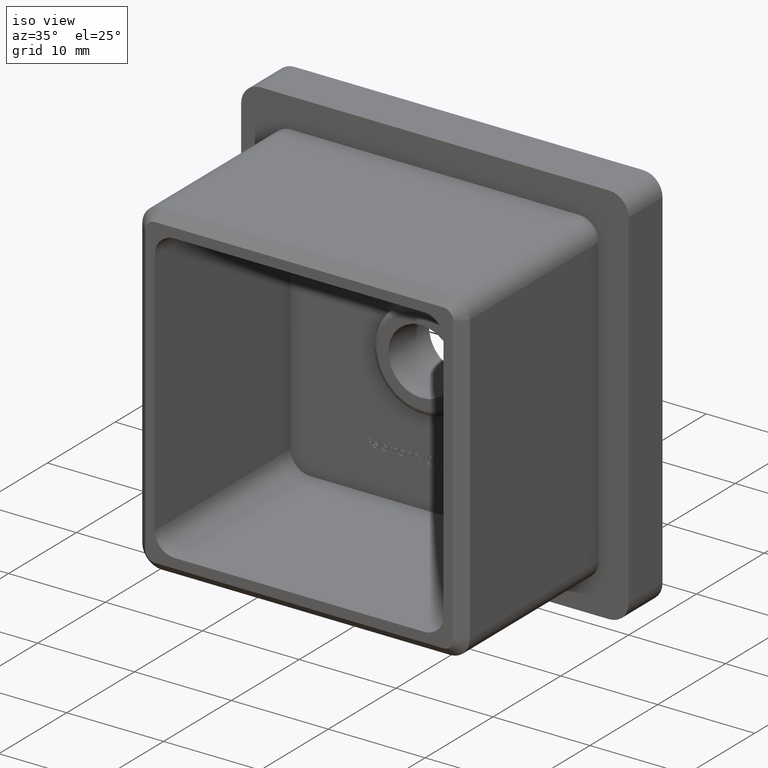
[diagram: clean part render]
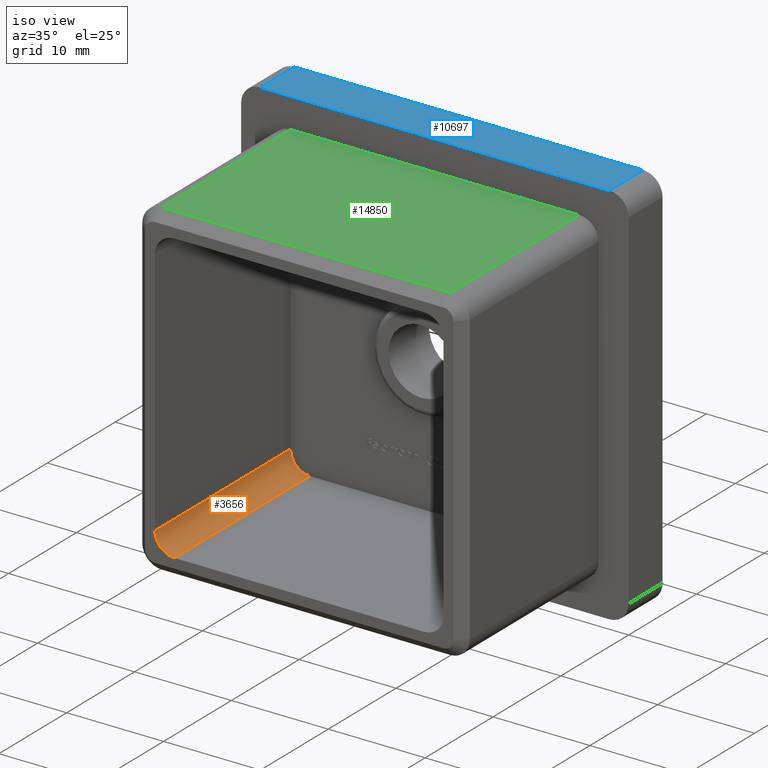
[diagram: same view with three faces highlighted in distinct colors, each labeled with its STEP entity id]
A machine part, iso view with three faces highlighted in distinct colors.
Their STEP definitions:

[orange] entity #3656 — the highlighted cylindrical surface (edge-blend (fillet) strip) has radius 2 mm, axis along (0, -1, 0).
#1190 = EDGE_CURVE ( 'NONE', #16471, #14129, #3633, .T. ) ;
#3277 = EDGE_CURVE ( 'NONE', #14129, #16538, #7452, .T. ) ;
#3633 = CIRCLE ( 'NONE', #6198, 2.000000000000000000 ) ;
#3656 = ADVANCED_FACE ( 'NONE', ( #8337 ), #10120, .F. ) ;
#4067 = EDGE_CURVE ( 'NONE', #10233, #16471, #5031, .T. ) ;
#4364 = ORIENTED_EDGE ( 'NONE', *, *, #1190, .F. ) ;
#4897 = AXIS2_PLACEMENT_3D ( 'NONE', #5185, #15134, #6672 ) ;
#5031 = LINE ( 'NONE', #8100, #11888 ) ;
#5185 = CARTESIAN_POINT ( 'NONE',  ( -12.89999999999999900, 0.0000000000000000000, -12.89999999999999700 ) ) ;
#5838 = CARTESIAN_POINT ( 'NONE',  ( -12.89999999999999900, -20.00000000000000000, -14.89999999999999700 ) ) ;
#5889 = ORIENTED_EDGE ( 'NONE', *, *, #3277, .F. ) ;
#5998 = CIRCLE ( 'NONE', #4897, 2.000000000000000000 ) ;
#6198 = AXIS2_PLACEMENT_3D ( 'NONE', #13736, #17773, #8040 ) ;
#6466 = DIRECTION ( 'NONE',  ( 0.0000000000000000000, -1.000000000000000000, 0.0000000000000000000 ) ) ;
#6672 = DIRECTION ( 'NONE',  ( 0.0000000000000000000, 0.0000000000000000000, 1.000000000000000000 ) ) ;
#7452 = LINE ( 'NONE', #16198, #18253 ) ;
#8040 = DIRECTION ( 'NONE',  ( 0.0000000000000000000, 0.0000000000000000000, -1.000000000000000000 ) ) ;
#8100 = CARTESIAN_POINT ( 'NONE',  ( -12.89999999999999900, -20.00000000000000000, -14.89999999999999700 ) ) ;
#8337 = FACE_OUTER_BOUND ( 'NONE', #9859, .T. ) ;
#9255 = CARTESIAN_POINT ( 'NONE',  ( -12.89999999999999900, -20.00000000000000000, -12.89999999999999700 ) ) ;
#9612 = ORIENTED_EDGE ( 'NONE', *, *, #15752, .F. ) ;
#9859 = EDGE_LOOP ( 'NONE', ( #4364, #16252, #9612, #5889 ) ) ;
#10120 = CYLINDRICAL_SURFACE ( 'NONE', #17383, 2.000000000000000000 ) ;
#10233 = VERTEX_POINT ( 'NONE', #14122 ) ;
#10749 = DIRECTION ( 'NONE',  ( -0.0000000000000000000, -1.000000000000000000, 0.0000000000000000000 ) ) ;
#11538 = CARTESIAN_POINT ( 'NONE',  ( -14.89999999999999900, 0.0000000000000000000, -12.89999999999999700 ) ) ;
#11888 = VECTOR ( 'NONE', #10749, 1000.000000000000000 ) ;
#13398 = DIRECTION ( 'NONE',  ( 0.0000000000000000000, 0.0000000000000000000, -1.000000000000000000 ) ) ;
#13671 = DIRECTION ( 'NONE',  ( 0.0000000000000000000, 1.000000000000000000, -0.0000000000000000000 ) ) ;
#13736 = CARTESIAN_POINT ( 'NONE',  ( -12.89999999999999900, -20.00000000000000000, -12.89999999999999700 ) ) ;
#14122 = CARTESIAN_POINT ( 'NONE',  ( -12.89999999999999900, 0.0000000000000000000, -14.89999999999999700 ) ) ;
#14129 = VERTEX_POINT ( 'NONE', #14653 ) ;
#14653 = CARTESIAN_POINT ( 'NONE',  ( -14.89999999999999900, -20.00000000000000000, -12.89999999999999700 ) ) ;
#15134 = DIRECTION ( 'NONE',  ( -0.0000000000000000000, -1.000000000000000000, -0.0000000000000000000 ) ) ;
#15752 = EDGE_CURVE ( 'NONE', #16538, #10233, #5998, .T. ) ;
#16198 = CARTESIAN_POINT ( 'NONE',  ( -14.89999999999999900, 0.0000000000000000000, -12.89999999999999700 ) ) ;
#16252 = ORIENTED_EDGE ( 'NONE', *, *, #4067, .F. ) ;
#16471 = VERTEX_POINT ( 'NONE', #5838 ) ;
#16538 = VERTEX_POINT ( 'NONE', #11538 ) ;
#17383 = AXIS2_PLACEMENT_3D ( 'NONE', #9255, #6466, #13398 ) ;
#17773 = DIRECTION ( 'NONE',  ( -0.0000000000000000000, 1.000000000000000000, -0.0000000000000000000 ) ) ;
#18253 = VECTOR ( 'NONE', #13671, 1000.000000000000000 ) ;

[blue] entity #10697 — the highlighted planar face has unit normal (0, 0, -1).
#403 = EDGE_LOOP ( 'NONE', ( #16782, #14934, #9663, #12147 ) ) ;
#438 = DIRECTION ( 'NONE',  ( 1.000000000000000000, 0.0000000000000000000, 0.0000000000000000000 ) ) ;
#663 = CARTESIAN_POINT ( 'NONE',  ( 18.00000000000000000, 5.000000000000000000, 19.99999999999999600 ) ) ;
#948 = PLANE ( 'NONE',  #7018 ) ;
#2145 = CARTESIAN_POINT ( 'NONE',  ( -20.00000000000000000, 5.000000000000000000, 19.99999999999999600 ) ) ;
#2248 = CARTESIAN_POINT ( 'NONE',  ( 18.00000000000000000, 5.000000000000000000, 19.99999999999999600 ) ) ;
#2267 = DIRECTION ( 'NONE',  ( -1.000000000000000000, 0.0000000000000000000, -0.0000000000000000000 ) ) ;
#2606 = CARTESIAN_POINT ( 'NONE',  ( -18.00000000000000000, 5.000000000000000000, 19.99999999999999600 ) ) ;
#4064 = CARTESIAN_POINT ( 'NONE',  ( -18.00000000000000000, 5.000000000000000000, 19.99999999999999600 ) ) ;
#4515 = VERTEX_POINT ( 'NONE', #4615 ) ;
#4615 = CARTESIAN_POINT ( 'NONE',  ( -18.00000000000000000, 0.0000000000000000000, 19.99999999999999600 ) ) ;
#4793 = VERTEX_POINT ( 'NONE', #4064 ) ;
#5476 = VECTOR ( 'NONE', #6467, 1000.000000000000000 ) ;
#5722 = VERTEX_POINT ( 'NONE', #10026 ) ;
#6467 = DIRECTION ( 'NONE',  ( 1.000000000000000000, 0.0000000000000000000, 0.0000000000000000000 ) ) ;
#7018 = AXIS2_PLACEMENT_3D ( 'NONE', #2145, #12015, #2267 ) ;
#8371 = LINE ( 'NONE', #2606, #10137 ) ;
#8578 = LINE ( 'NONE', #663, #9033 ) ;
#9033 = VECTOR ( 'NONE', #13196, 1000.000000000000000 ) ;
#9240 = LINE ( 'NONE', #12039, #5476 ) ;
#9663 = ORIENTED_EDGE ( 'NONE', *, *, #12436, .F. ) ;
#10026 = CARTESIAN_POINT ( 'NONE',  ( 18.00000000000000000, 0.0000000000000000000, 19.99999999999999600 ) ) ;
#10137 = VECTOR ( 'NONE', #14262, 1000.000000000000000 ) ;
#10697 = ADVANCED_FACE ( 'NONE', ( #13111 ), #948, .F. ) ;
#11286 = EDGE_CURVE ( 'NONE', #4793, #4515, #8371, .T. ) ;
#12013 = EDGE_CURVE ( 'NONE', #5722, #14329, #8578, .T. ) ;
#12015 = DIRECTION ( 'NONE',  ( 0.0000000000000000000, 0.0000000000000000000, -1.000000000000000000 ) ) ;
#12039 = CARTESIAN_POINT ( 'NONE',  ( -20.00000000000000000, 5.000000000000000000, 19.99999999999999600 ) ) ;
#12147 = ORIENTED_EDGE ( 'NONE', *, *, #11286, .T. ) ;
#12436 = EDGE_CURVE ( 'NONE', #4793, #14329, #9240, .T. ) ;
#13098 = CARTESIAN_POINT ( 'NONE',  ( -20.00000000000000000, 0.0000000000000000000, 19.99999999999999600 ) ) ;
#13111 = FACE_OUTER_BOUND ( 'NONE', #403, .T. ) ;
#13196 = DIRECTION ( 'NONE',  ( -0.0000000000000000000, 1.000000000000000000, -0.0000000000000000000 ) ) ;
#14009 = EDGE_CURVE ( 'NONE', #4515, #5722, #16924, .T. ) ;
#14083 = VECTOR ( 'NONE', #438, 1000.000000000000000 ) ;
#14262 = DIRECTION ( 'NONE',  ( 0.0000000000000000000, -1.000000000000000000, 0.0000000000000000000 ) ) ;
#14329 = VERTEX_POINT ( 'NONE', #2248 ) ;
#14934 = ORIENTED_EDGE ( 'NONE', *, *, #12013, .T. ) ;
#16782 = ORIENTED_EDGE ( 'NONE', *, *, #14009, .T. ) ;
#16924 = LINE ( 'NONE', #13098, #14083 ) ;

[green] entity #14850 — the highlighted planar face has unit normal (0, 0, -1).
#600 = EDGE_LOOP ( 'NONE', ( #5200, #7415, #6733, #13266 ) ) ;
#748 = VECTOR ( 'NONE', #11789, 1000.000000000000000 ) ;
#778 = DIRECTION ( 'NONE',  ( -1.000000000000000000, 0.0000000000000000000, -0.0000000000000000000 ) ) ;
#904 = PLANE ( 'NONE',  #17399 ) ;
#1158 = CARTESIAN_POINT ( 'NONE',  ( -14.89999999999999900, 0.0000000000000000000, 16.89999999999999900 ) ) ;
#1454 = LINE ( 'NONE', #10401, #5868 ) ;
#1666 = LINE ( 'NONE', #5013, #14268 ) ;
#3233 = FACE_OUTER_BOUND ( 'NONE', #600, .T. ) ;
#3696 = CARTESIAN_POINT ( 'NONE',  ( -14.89999999999999900, -18.99999999999999300, 16.89999999999999900 ) ) ;
#4307 = CARTESIAN_POINT ( 'NONE',  ( -14.89999999999999900, -20.00000000000000000, 16.89999999999999900 ) ) ;
#5013 = CARTESIAN_POINT ( 'NONE',  ( 14.89999999999999700, -20.00000000000000000, 16.89999999999999900 ) ) ;
#5200 = ORIENTED_EDGE ( 'NONE', *, *, #9352, .T. ) ;
#5868 = VECTOR ( 'NONE', #13239, 1000.000000000000000 ) ;
#5920 = EDGE_CURVE ( 'NONE', #12434, #7195, #1454, .T. ) ;
#6316 = VERTEX_POINT ( 'NONE', #1158 ) ;
#6733 = ORIENTED_EDGE ( 'NONE', *, *, #8219, .T. ) ;
#7052 = DIRECTION ( 'NONE',  ( -0.0000000000000000000, -1.000000000000000000, -0.0000000000000000000 ) ) ;
#7195 = VERTEX_POINT ( 'NONE', #15248 ) ;
#7415 = ORIENTED_EDGE ( 'NONE', *, *, #5920, .T. ) ;
#7914 = DIRECTION ( 'NONE',  ( 0.0000000000000000000, 1.000000000000000000, 0.0000000000000000000 ) ) ;
#8066 = LINE ( 'NONE', #4307, #14049 ) ;
#8219 = EDGE_CURVE ( 'NONE', #7195, #15974, #1666, .T. ) ;
#9352 = EDGE_CURVE ( 'NONE', #6316, #12434, #8066, .T. ) ;
#10401 = CARTESIAN_POINT ( 'NONE',  ( 14.89999999999999700, -18.99999999999999300, 16.89999999999999900 ) ) ;
#10461 = EDGE_CURVE ( 'NONE', #15974, #6316, #11133, .T. ) ;
#10718 = DIRECTION ( 'NONE',  ( 0.0000000000000000000, 0.0000000000000000000, -1.000000000000000000 ) ) ;
#11133 = LINE ( 'NONE', #11729, #748 ) ;
#11729 = CARTESIAN_POINT ( 'NONE',  ( -16.89999999999999900, 0.0000000000000000000, 16.89999999999999900 ) ) ;
#11789 = DIRECTION ( 'NONE',  ( -1.000000000000000000, -0.0000000000000000000, -0.0000000000000000000 ) ) ;
#12434 = VERTEX_POINT ( 'NONE', #3696 ) ;
#13239 = DIRECTION ( 'NONE',  ( 1.000000000000000000, 0.0000000000000000000, 0.0000000000000000000 ) ) ;
#13266 = ORIENTED_EDGE ( 'NONE', *, *, #10461, .T. ) ;
#14049 = VECTOR ( 'NONE', #7052, 1000.000000000000000 ) ;
#14268 = VECTOR ( 'NONE', #7914, 1000.000000000000000 ) ;
#14635 = CARTESIAN_POINT ( 'NONE',  ( 14.89999999999999700, 0.0000000000000000000, 16.89999999999999900 ) ) ;
#14850 = ADVANCED_FACE ( 'NONE', ( #3233 ), #904, .F. ) ;
#15045 = CARTESIAN_POINT ( 'NONE',  ( -16.89999999999999900, -20.00000000000000000, 16.89999999999999900 ) ) ;
#15248 = CARTESIAN_POINT ( 'NONE',  ( 14.89999999999999700, -18.99999999999999300, 16.89999999999999900 ) ) ;
#15974 = VERTEX_POINT ( 'NONE', #14635 ) ;
#17399 = AXIS2_PLACEMENT_3D ( 'NONE', #15045, #10718, #778 ) ;